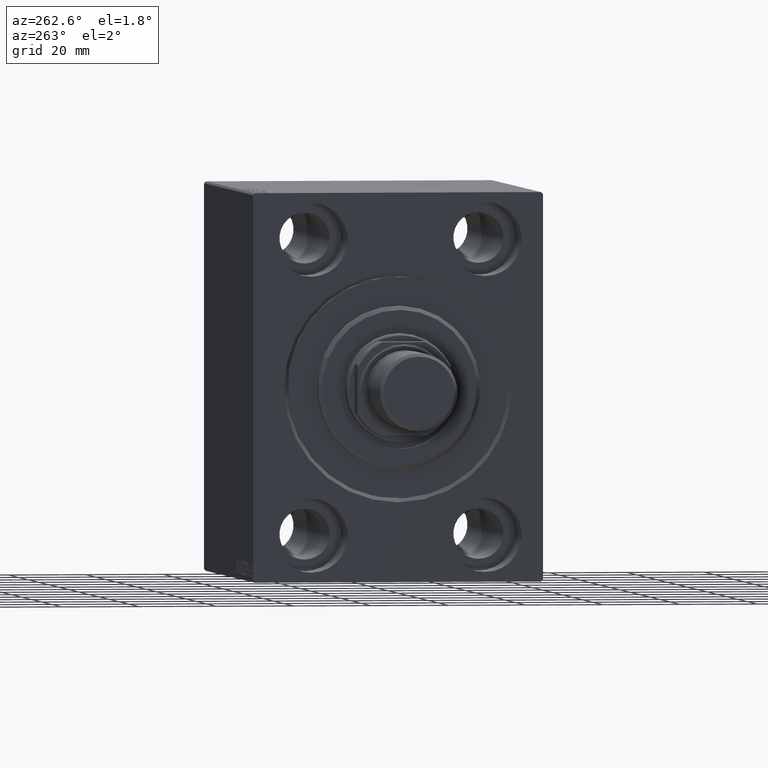
[diagram: clean part render]
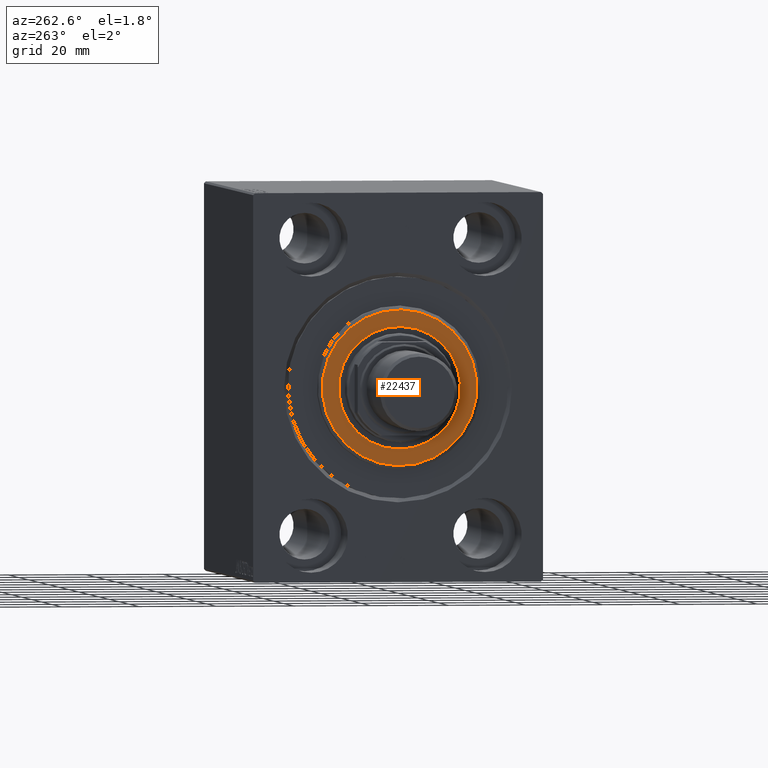
[diagram: same view with one face highlighted and labeled with its STEP entity id]
A machine part, auxiliary view. The second image highlights one B-rep face of the part: STEP entity #22437.
In plain terms, the highlighted planar face has unit normal (-1, 0, 0).
Its self-contained STEP definition (entity closure, byte-faithful):
#109 = EDGE_CURVE ( 'NONE', #21635, #2754, #23954, .T. ) ;
#837 = AXIS2_PLACEMENT_3D ( 'NONE', #21470, #42224, #10782 ) ;
#1005 = DIRECTION ( 'NONE',  ( -1.000000000000000000, 0.000000000000000000, -0.000000000000000000 ) ) ;
#2265 = EDGE_CURVE ( 'NONE', #34944, #38656, #7596, .T. ) ;
#2754 = VERTEX_POINT ( 'NONE', #4455 ) ;
#4094 = DIRECTION ( 'NONE',  ( -1.000000000000000000, 0.000000000000000000, -0.000000000000000000 ) ) ;
#4360 = CARTESIAN_POINT ( 'NONE',  ( 3.000000000000000000, 0.000000000000000000, 15.75000000000000000 ) ) ;
#4455 = CARTESIAN_POINT ( 'NONE',  ( 3.000000000000000000, 0.000000000000000000, 19.99999999999999645 ) ) ;
#5407 = DIRECTION ( 'NONE',  ( 0.000000000000000000, 0.000000000000000000, -1.000000000000000000 ) ) ;
#5809 = ORIENTED_EDGE ( 'NONE', *, *, #2265, .T. ) ;
#7596 = CIRCLE ( 'NONE', #39674, 15.75000000000000000 ) ;
#7967 = PLANE ( 'NONE',  #43730 ) ;
#10782 = DIRECTION ( 'NONE',  ( 0.000000000000000000, 0.000000000000000000, -1.000000000000000000 ) ) ;
#10846 = ORIENTED_EDGE ( 'NONE', *, *, #109, .T. ) ;
#12453 = CIRCLE ( 'NONE', #40959, 15.75000000000000000 ) ;
#14154 = CARTESIAN_POINT ( 'NONE',  ( 3.000000000000000000, 0.000000000000000000, 0.000000000000000000 ) ) ;
#14634 = FACE_OUTER_BOUND ( 'NONE', #24582, .T. ) ;
#17782 = EDGE_LOOP ( 'NONE', ( #25341, #5809 ) ) ;
#21030 = CARTESIAN_POINT ( 'NONE',  ( 3.000000000000000000, 0.000000000000000000, 0.000000000000000000 ) ) ;
#21470 = CARTESIAN_POINT ( 'NONE',  ( 3.000000000000000000, 0.000000000000000000, 0.000000000000000000 ) ) ;
#21554 = CARTESIAN_POINT ( 'NONE',  ( 3.000000000000000000, 0.000000000000000000, 0.000000000000000000 ) ) ;
#21635 = VERTEX_POINT ( 'NONE', #36252 ) ;
#22437 = ADVANCED_FACE ( 'NONE', ( #14634, #28238 ), #7967, .T. ) ;
#22855 = CARTESIAN_POINT ( 'NONE',  ( 3.000000000000000000, 0.000000000000000000, 0.000000000000000000 ) ) ;
#23954 = CIRCLE ( 'NONE', #37502, 19.99999999999999645 ) ;
#24582 = EDGE_LOOP ( 'NONE', ( #42524, #10846 ) ) ;
#25341 = ORIENTED_EDGE ( 'NONE', *, *, #26796, .T. ) ;
#26514 = CIRCLE ( 'NONE', #837, 19.99999999999999645 ) ;
#26796 = EDGE_CURVE ( 'NONE', #38656, #34944, #12453, .T. ) ;
#28238 = FACE_BOUND ( 'NONE', #17782, .T. ) ;
#31803 = DIRECTION ( 'NONE',  ( 0.000000000000000000, 0.000000000000000000, -1.000000000000000000 ) ) ;
#34944 = VERTEX_POINT ( 'NONE', #40318 ) ;
#35170 = DIRECTION ( 'NONE',  ( 1.000000000000000000, -0.000000000000000000, 0.000000000000000000 ) ) ;
#35560 = DIRECTION ( 'NONE',  ( 0.000000000000000000, 0.000000000000000000, -1.000000000000000000 ) ) ;
#36252 = CARTESIAN_POINT ( 'NONE',  ( 3.000000000000000000, 2.510525938252074087E-15, -19.99999999999999645 ) ) ;
#36483 = DIRECTION ( 'NONE',  ( 0.000000000000000000, 0.000000000000000000, -1.000000000000000000 ) ) ;
#37502 = AXIS2_PLACEMENT_3D ( 'NONE', #22855, #39830, #36483 ) ;
#38656 = VERTEX_POINT ( 'NONE', #4360 ) ;
#39674 = AXIS2_PLACEMENT_3D ( 'NONE', #14154, #1005, #35560 ) ;
#39830 = DIRECTION ( 'NONE',  ( 1.000000000000000000, -0.000000000000000000, 0.000000000000000000 ) ) ;
#40318 = CARTESIAN_POINT ( 'NONE',  ( 3.000000000000000000, 1.928818708657080950E-15, -15.75000000000000000 ) ) ;
#40959 = AXIS2_PLACEMENT_3D ( 'NONE', #21030, #4094, #5407 ) ;
#41603 = EDGE_CURVE ( 'NONE', #2754, #21635, #26514, .T. ) ;
#42224 = DIRECTION ( 'NONE',  ( 1.000000000000000000, -0.000000000000000000, 0.000000000000000000 ) ) ;
#42524 = ORIENTED_EDGE ( 'NONE', *, *, #41603, .T. ) ;
#43730 = AXIS2_PLACEMENT_3D ( 'NONE', #21554, #35170, #31803 ) ;